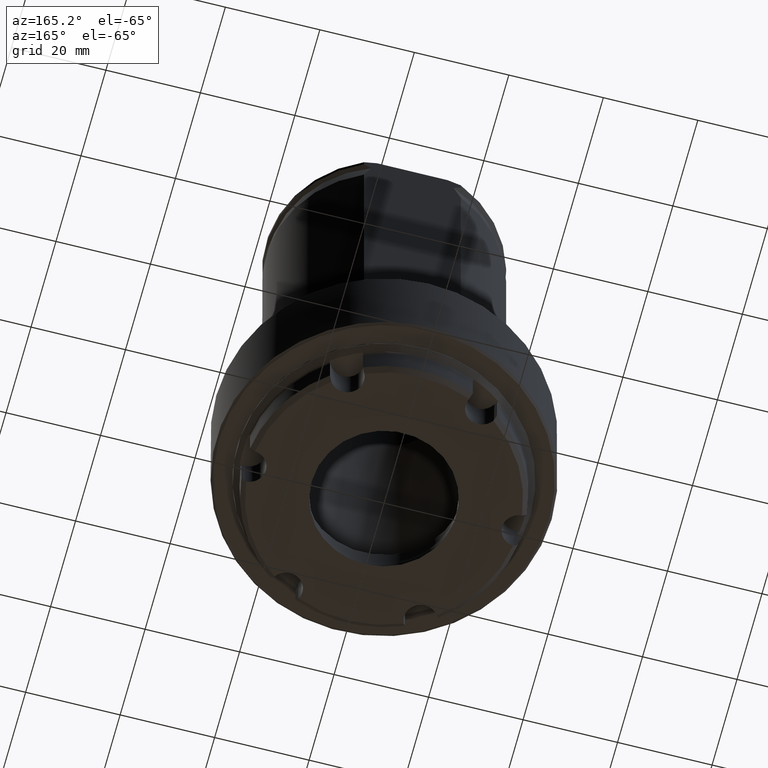
[diagram: clean part render]
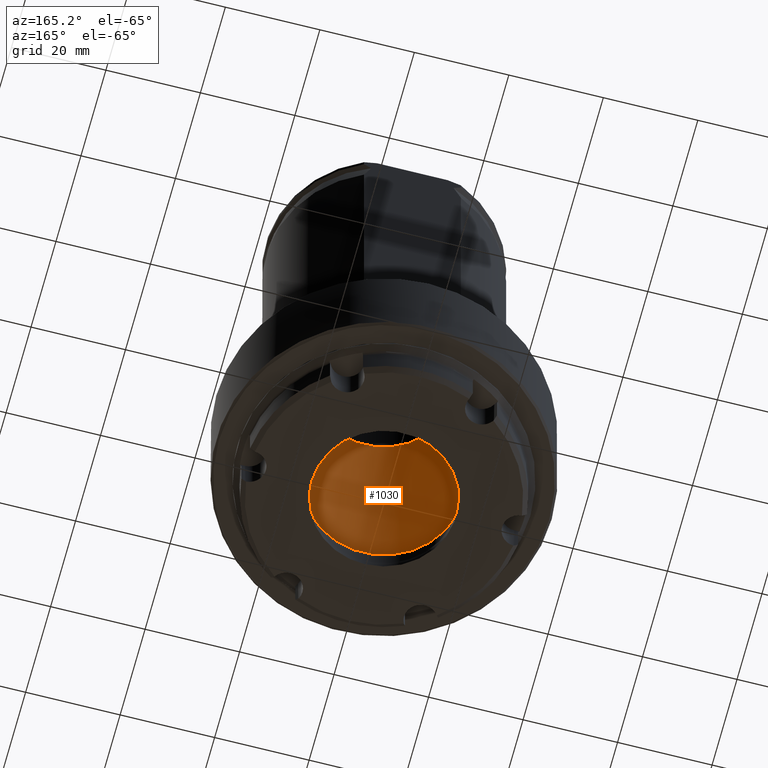
[diagram: same view with one face highlighted and labeled with its STEP entity id]
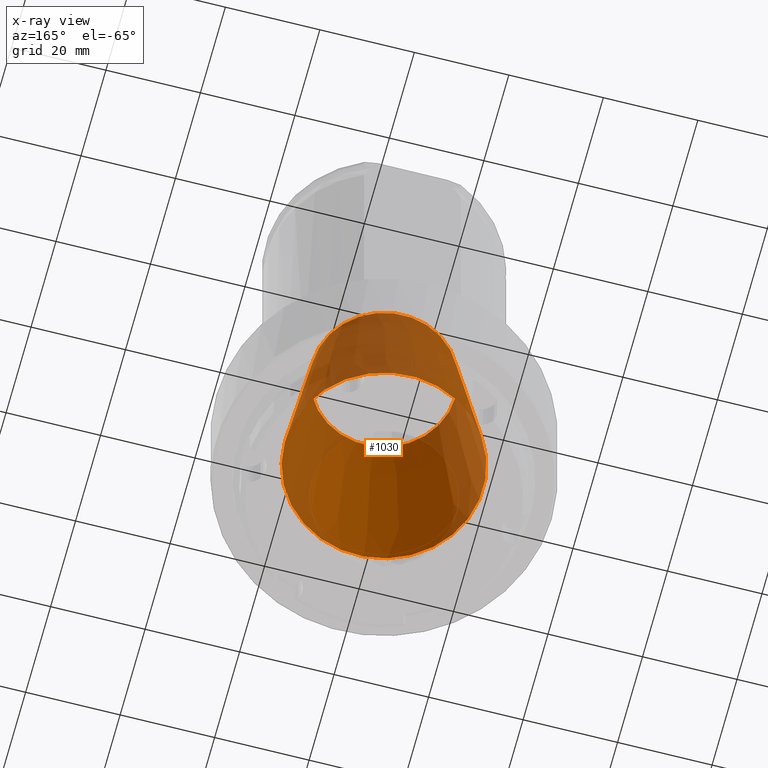
[diagram: x-ray of the same camera — body ghosted, the highlighted face saturated]
A machine part, auxiliary view. The second image highlights one B-rep face of the part: STEP entity #1030.
The next image is the same camera in x-ray: the body ghosted, the highlighted face saturated — about 52% of this face is hidden behind the body in this view.
In plain terms, the highlighted conical surface has half-angle 8 deg.
Its self-contained STEP definition (entity closure, byte-faithful):
#100=CONICAL_SURFACE('',#1167,15.15,0.139626340159546);
#470=ORIENTED_EDGE('',*,*,#621,.F.);
#471=ORIENTED_EDGE('',*,*,#620,.T.);
#620=EDGE_CURVE('',#718,#718,#779,.T.);
#621=EDGE_CURVE('',#719,#719,#780,.T.);
#718=VERTEX_POINT('',#1897);
#719=VERTEX_POINT('',#1900);
#779=CIRCLE('',#1166,15.15);
#780=CIRCLE('',#1168,20.981240135365);
#855=EDGE_LOOP('',(#470));
#856=EDGE_LOOP('',(#471));
#935=FACE_BOUND('',#855,.T.);
#936=FACE_BOUND('',#856,.T.);
#1030=ADVANCED_FACE('',(#935,#936),#100,.F.);
#1166=AXIS2_PLACEMENT_3D('',#1896,#1456,#1457);
#1167=AXIS2_PLACEMENT_3D('',#1898,#1458,#1459);
#1168=AXIS2_PLACEMENT_3D('',#1899,#1460,#1461);
#1456=DIRECTION('',(0.,0.,1.));
#1457=DIRECTION('',(1.,0.,0.));
#1458=DIRECTION('',(0.,0.,-1.));
#1459=DIRECTION('',(-1.,0.,0.));
#1460=DIRECTION('',(0.,0.,1.));
#1461=DIRECTION('',(1.,0.,0.));
#1896=CARTESIAN_POINT('',(0.,0.,26.480180020967));
#1897=CARTESIAN_POINT('',(15.15,0.,26.480180020967));
#1898=CARTESIAN_POINT('',(0.,0.,26.480180020967));
#1899=CARTESIAN_POINT('',(0.,0.,-15.0112494821608));
#1900=CARTESIAN_POINT('',(20.981240135365,0.,-15.0112494821608));